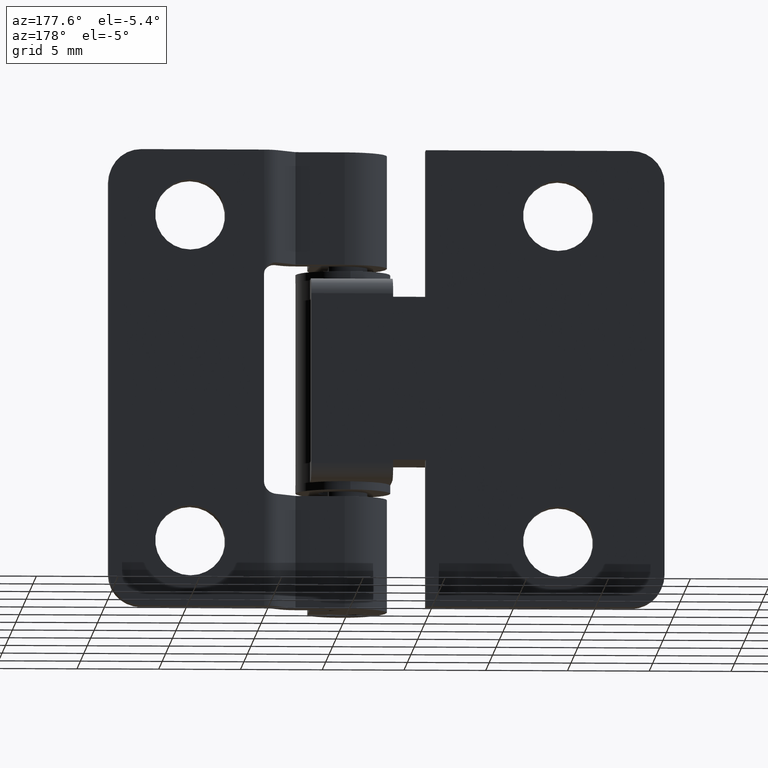
[diagram: clean part render]
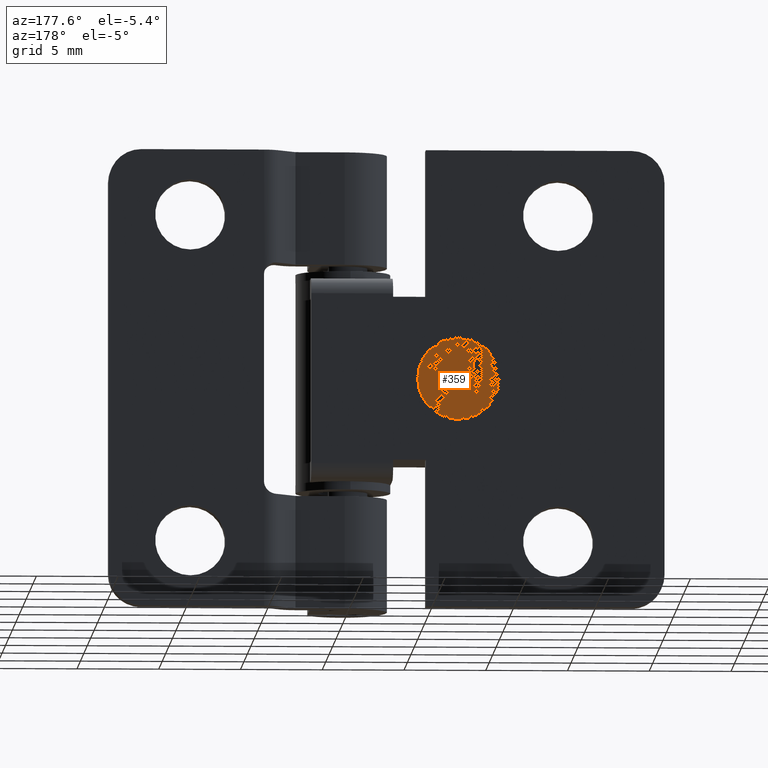
[diagram: same view with one face highlighted and labeled with its STEP entity id]
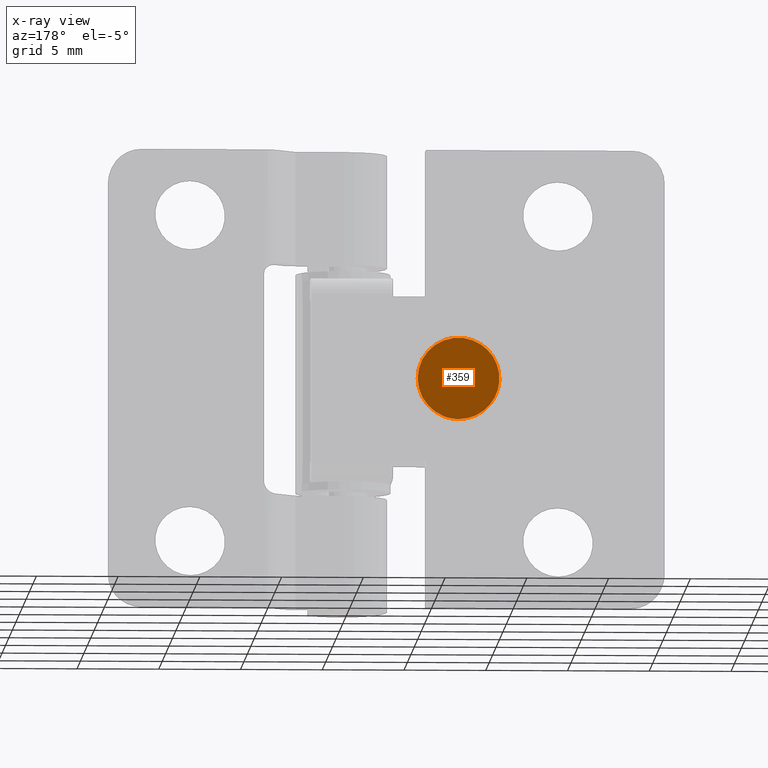
[diagram: x-ray of the same camera — body ghosted, the highlighted face saturated]
A machine part, auxiliary view. The second image highlights one B-rep face of the part: STEP entity #359.
The next image is the same camera in x-ray: the body ghosted, the highlighted face saturated — about 0% of this face is hidden behind the body in this view.
In plain terms, the highlighted planar face has unit normal (0, 1, 0).
Its self-contained STEP definition (entity closure, byte-faithful):
#359=ADVANCED_FACE('',(#644),#643,.T.);
#643=PLANE('',#1950);
#644=FACE_OUTER_BOUND('',#1951,.T.);
#1947=CARTESIAN_POINT('',(-1.00683934216E+01,4.30000000000E+00,1.09106576660E+01));
#1948=DIRECTION('',(0.00000000000E+00,1.00000000000E+00,0.00000000000E+00));
#1949=DIRECTION('',(0.00000000000E+00,0.00000000000E+00,1.00000000000E+00));
#1950=AXIS2_PLACEMENT_3D('',#1947,#1948,#1949);
#1951=EDGE_LOOP('',(#2737,#2738,#2739,#2740));
#2737=ORIENTED_EDGE('',*,*,#3477,.T.);
#2738=ORIENTED_EDGE('',*,*,#3478,.T.);
#2739=ORIENTED_EDGE('',*,*,#3479,.T.);
#2740=ORIENTED_EDGE('',*,*,#3480,.T.);
#3477=EDGE_CURVE('',#4084,#4085,#4086,.T.);
#3478=EDGE_CURVE('',#4085,#4092,#4093,.T.);
#3479=EDGE_CURVE('',#4092,#4099,#4100,.T.);
#3480=EDGE_CURVE('',#4099,#4084,#4106,.T.);
#4084=VERTEX_POINT('',#6591);
#4085=VERTEX_POINT('',#6592);
#4086=CIRCLE('',#6596,2.50000000000E+00);
#4092=VERTEX_POINT('',#6597);
#4093=CIRCLE('',#6601,2.50000000000E+00);
#4099=VERTEX_POINT('',#6602);
#4100=CIRCLE('',#6606,2.50000000014E+00);
#4106=CIRCLE('',#6610,2.50000000007E+00);
#6591=CARTESIAN_POINT('',(-7.77904493598E+00,4.30000000000E+00,1.63403589469E+01));
#6592=CARTESIAN_POINT('',(-6.02095464476E+00,4.30000000000E+00,1.16596412105E+01));
#6593=CARTESIAN_POINT('',(-6.90000000000E+00,4.30000000000E+00,1.40000000000E+01));
#6594=DIRECTION('',(3.92366134942E-16,1.00000000000E+00,9.44356342675E-13));
#6595=DIRECTION('',(-3.51617974392E-01,-8.83915163286E-13,9.36143578776E-01));
#6596=AXIS2_PLACEMENT_3D('',#6593,#6594,#6595);
#6597=CARTESIAN_POINT('',(-6.90000000000E+00,4.30000000000E+00,1.15000000000E+01));
#6598=CARTESIAN_POINT('',(-6.90000000000E+00,4.30000000000E+00,1.40000000000E+01));
#6599=DIRECTION('',(3.92366134942E-16,1.00000000000E+00,9.44356342675E-13));
#6600=DIRECTION('',(-3.51617974392E-01,-8.83915163286E-13,9.36143578776E-01));
#6601=AXIS2_PLACEMENT_3D('',#6598,#6599,#6600);
#6602=CARTESIAN_POINT('',(-9.39533699607E+00,4.30000000003E+00,1.38473786510E+01));
#6603=CARTESIAN_POINT('',(-6.89999999990E+00,4.30000000003E+00,1.40000000001E+01));
#6604=DIRECTION('',(2.51214793392E-16,1.00000000000E+00,-1.08187236941E-11));
#6605=DIRECTION('',(4.13280076805E-11,1.08187236941E-11,1.00000000000E+00));
#6606=AXIS2_PLACEMENT_3D('',#6603,#6604,#6605);
#6607=CARTESIAN_POINT('',(-6.89999999995E+00,4.30000000007E+00,1.39999999999E+01));
#6608=DIRECTION('',(-3.69588980631E-11,1.00000000000E+00,3.30878818931E-10));
#6609=DIRECTION('',(9.98134798419E-01,1.66902935912E-11,6.10485395896E-02));
#6610=AXIS2_PLACEMENT_3D('',#6607,#6608,#6609);